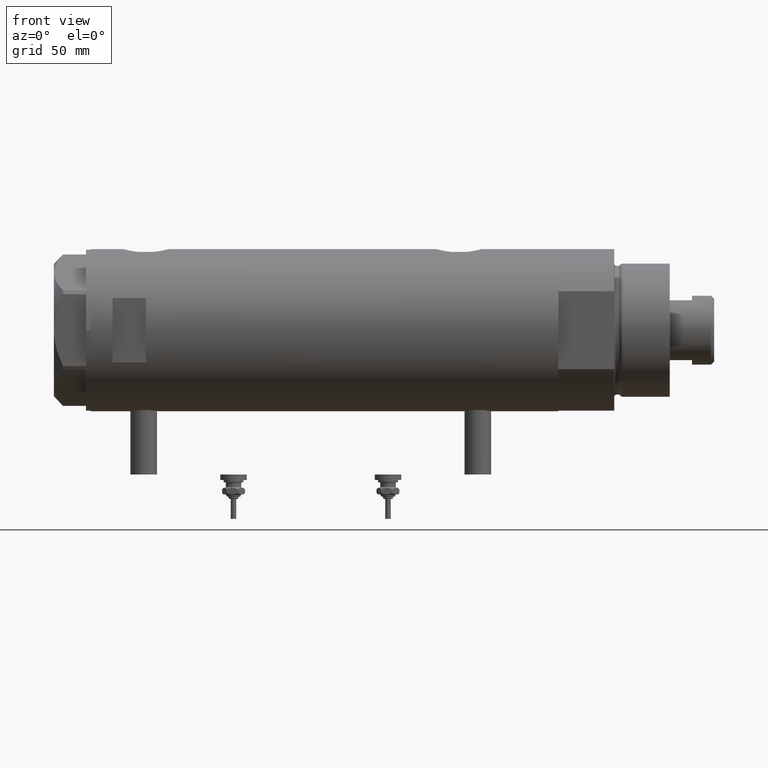
[diagram: clean part render]
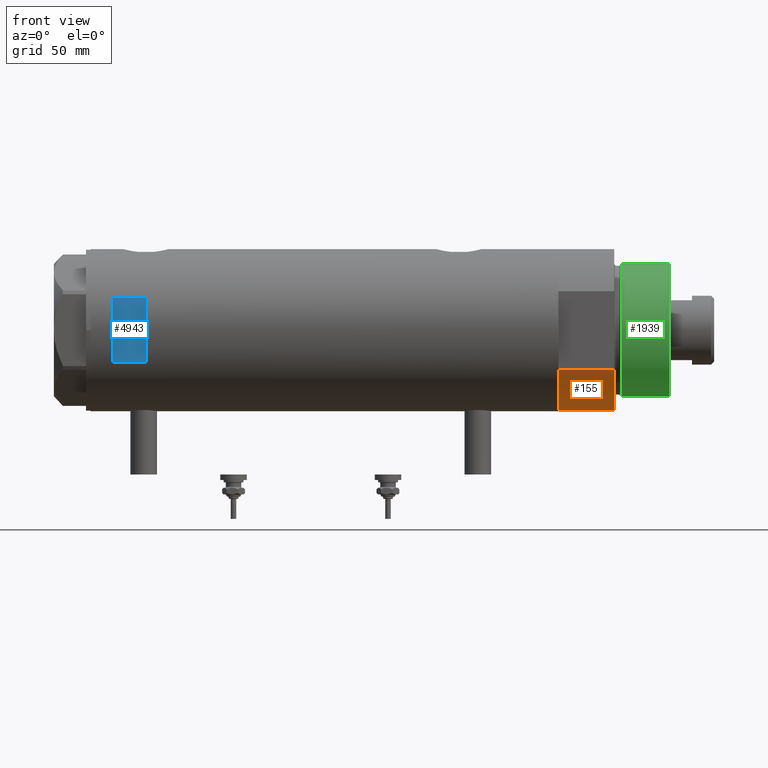
[diagram: same view with three faces highlighted in distinct colors, each labeled with its STEP entity id]
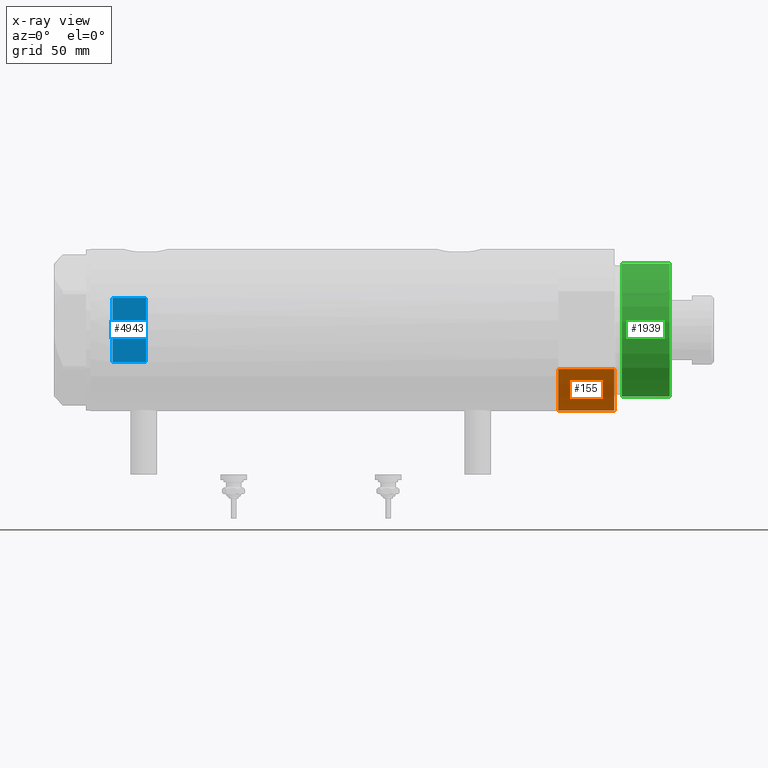
[diagram: x-ray of the same camera — body ghosted, the three highlighted faces saturated]
A machine part, front view with three faces highlighted in distinct colors.
The next image is the same camera in x-ray (body ghosted, the three faces saturated) — at least one of them is partly hidden behind the body in this view.
Their STEP definitions:

[orange] entity #155 — the highlighted cylindrical surface (partial cylindrical patch) has radius 36.5 mm, axis along (-1, -0, 0).
#65 = DIRECTION ( 'NONE',  ( -1.000000000000000000, 0.000000000000000000, 0.000000000000000000 ) ) ;
#155 = ADVANCED_FACE ( 'NONE', ( #4169 ), #5180, .T. ) ;
#209 = CARTESIAN_POINT ( 'NONE',  ( 0.000000000000000000, 0.000000000000000000, 0.000000000000000000 ) ) ;
#309 = CARTESIAN_POINT ( 'NONE',  ( 0.000000000000000000, 0.000000000000000000, 25.19999999999999929 ) ) ;
#436 = AXIS2_PLACEMENT_3D ( 'NONE', #309, #1675, #5355 ) ;
#439 = LINE ( 'NONE', #3683, #1668 ) ;
#454 = ORIENTED_EDGE ( 'NONE', *, *, #1743, .F. ) ;
#495 = CARTESIAN_POINT ( 'NONE',  ( 17.55704986607943496, -32.00000000000000000, 25.19999999999999929 ) ) ;
#593 = AXIS2_PLACEMENT_3D ( 'NONE', #1849, #3695, #65 ) ;
#631 = DIRECTION ( 'NONE',  ( 0.000000000000000000, 0.000000000000000000, 1.000000000000000000 ) ) ;
#649 = EDGE_LOOP ( 'NONE', ( #5561, #454, #1644, #5263 ) ) ;
#914 = CIRCLE ( 'NONE', #436, 36.50000000000000000 ) ;
#1193 = CIRCLE ( 'NONE', #1887, 36.50000000000000000 ) ;
#1265 = DIRECTION ( 'NONE',  ( -0.000000000000000000, -0.000000000000000000, 1.000000000000000000 ) ) ;
#1644 = ORIENTED_EDGE ( 'NONE', *, *, #2425, .T. ) ;
#1668 = VECTOR ( 'NONE', #5060, 1000.000000000000000 ) ;
#1675 = DIRECTION ( 'NONE',  ( 0.000000000000000000, 0.000000000000000000, 1.000000000000000000 ) ) ;
#1743 = EDGE_CURVE ( 'NONE', #2973, #1826, #439, .T. ) ;
#1826 = VERTEX_POINT ( 'NONE', #495 ) ;
#1849 = CARTESIAN_POINT ( 'NONE',  ( 0.000000000000000000, 0.000000000000000000, 25.19999999999999929 ) ) ;
#1887 = AXIS2_PLACEMENT_3D ( 'NONE', #209, #631, #5306 ) ;
#2109 = VERTEX_POINT ( 'NONE', #2700 ) ;
#2425 = EDGE_CURVE ( 'NONE', #2973, #4716, #1193, .T. ) ;
#2660 = VECTOR ( 'NONE', #1265, 1000.000000000000000 ) ;
#2680 = EDGE_CURVE ( 'NONE', #4716, #2109, #5389, .T. ) ;
#2700 = CARTESIAN_POINT ( 'NONE',  ( 17.55704986607943496, 32.00000000000000000, 25.19999999999999929 ) ) ;
#2973 = VERTEX_POINT ( 'NONE', #4966 ) ;
#3683 = CARTESIAN_POINT ( 'NONE',  ( 17.55704986607943141, -32.00000000000000000, 0.000000000000000000 ) ) ;
#3695 = DIRECTION ( 'NONE',  ( -0.000000000000000000, -0.000000000000000000, -1.000000000000000000 ) ) ;
#4043 = CARTESIAN_POINT ( 'NONE',  ( 17.55704986607943141, 32.00000000000000000, 0.000000000000000000 ) ) ;
#4169 = FACE_OUTER_BOUND ( 'NONE', #649, .T. ) ;
#4716 = VERTEX_POINT ( 'NONE', #5265 ) ;
#4801 = EDGE_CURVE ( 'NONE', #1826, #2109, #914, .T. ) ;
#4966 = CARTESIAN_POINT ( 'NONE',  ( 17.55704986607943141, -32.00000000000000000, 0.000000000000000000 ) ) ;
#5060 = DIRECTION ( 'NONE',  ( -0.000000000000000000, -0.000000000000000000, 1.000000000000000000 ) ) ;
#5180 = CYLINDRICAL_SURFACE ( 'NONE', #593, 36.50000000000000000 ) ;
#5263 = ORIENTED_EDGE ( 'NONE', *, *, #2680, .T. ) ;
#5265 = CARTESIAN_POINT ( 'NONE',  ( 17.55704986607943496, 32.00000000000000000, 0.000000000000000000 ) ) ;
#5306 = DIRECTION ( 'NONE',  ( 1.000000000000000000, 0.000000000000000000, 0.000000000000000000 ) ) ;
#5355 = DIRECTION ( 'NONE',  ( 1.000000000000000000, 0.000000000000000000, 0.000000000000000000 ) ) ;
#5389 = LINE ( 'NONE', #4043, #2660 ) ;
#5561 = ORIENTED_EDGE ( 'NONE', *, *, #4801, .F. ) ;

[blue] entity #4943 — the highlighted planar face has unit normal (-0, 1, 0).
#39 = CARTESIAN_POINT ( 'NONE',  ( -36.50000000000000000, -33.50000000000000000, 80.40000000000003411 ) ) ;
#630 = EDGE_CURVE ( 'NONE', #3304, #1897, #3267, .T. ) ;
#1046 = DIRECTION ( 'NONE',  ( 1.000000000000000000, -0.000000000000000000, -0.000000000000000000 ) ) ;
#1187 = FACE_OUTER_BOUND ( 'NONE', #5251, .T. ) ;
#1379 = EDGE_CURVE ( 'NONE', #4206, #2959, #4695, .T. ) ;
#1897 = VERTEX_POINT ( 'NONE', #2442 ) ;
#2081 = CARTESIAN_POINT ( 'NONE',  ( -36.50000000000000000, -33.50000000000000000, 95.40000000000001990 ) ) ;
#2110 = LINE ( 'NONE', #2081, #5156 ) ;
#2371 = DIRECTION ( 'NONE',  ( 1.000000000000000000, -0.000000000000000000, -0.000000000000000000 ) ) ;
#2426 = CARTESIAN_POINT ( 'NONE',  ( 14.49137674618942562, -33.50000000000000000, -105.4000000000000057 ) ) ;
#2442 = CARTESIAN_POINT ( 'NONE',  ( -14.49137674618942739, -33.50000000000000000, 80.40000000000003411 ) ) ;
#2460 = VECTOR ( 'NONE', #2371, 1000.000000000000000 ) ;
#2653 = ORIENTED_EDGE ( 'NONE', *, *, #630, .T. ) ;
#2959 = VERTEX_POINT ( 'NONE', #5027 ) ;
#3052 = PLANE ( 'NONE',  #5714 ) ;
#3267 = LINE ( 'NONE', #5094, #5221 ) ;
#3304 = VERTEX_POINT ( 'NONE', #5466 ) ;
#3305 = CARTESIAN_POINT ( 'NONE',  ( 14.49137674618942739, -33.50000000000000000, 80.40000000000003411 ) ) ;
#3889 = VECTOR ( 'NONE', #4242, 1000.000000000000000 ) ;
#3947 = ORIENTED_EDGE ( 'NONE', *, *, #4289, .F. ) ;
#4175 = LINE ( 'NONE', #39, #2460 ) ;
#4206 = VERTEX_POINT ( 'NONE', #3305 ) ;
#4242 = DIRECTION ( 'NONE',  ( 0.000000000000000000, 0.000000000000000000, 1.000000000000000000 ) ) ;
#4258 = EDGE_CURVE ( 'NONE', #1897, #4206, #4175, .T. ) ;
#4289 = EDGE_CURVE ( 'NONE', #3304, #2959, #2110, .T. ) ;
#4550 = DIRECTION ( 'NONE',  ( 0.000000000000000000, 1.000000000000000000, 0.000000000000000000 ) ) ;
#4585 = ORIENTED_EDGE ( 'NONE', *, *, #4258, .T. ) ;
#4642 = DIRECTION ( 'NONE',  ( -0.000000000000000000, -0.000000000000000000, -1.000000000000000000 ) ) ;
#4695 = LINE ( 'NONE', #2426, #3889 ) ;
#4871 = CARTESIAN_POINT ( 'NONE',  ( -36.50000000000000000, -33.50000000000000000, 95.40000000000001990 ) ) ;
#4943 = ADVANCED_FACE ( 'NONE', ( #1187 ), #3052, .F. ) ;
#5027 = CARTESIAN_POINT ( 'NONE',  ( 14.49137674618942739, -33.50000000000000000, 95.40000000000001990 ) ) ;
#5094 = CARTESIAN_POINT ( 'NONE',  ( -14.49137674618942562, -33.50000000000000000, -105.4000000000000057 ) ) ;
#5121 = DIRECTION ( 'NONE',  ( 0.000000000000000000, -0.000000000000000000, 1.000000000000000000 ) ) ;
#5156 = VECTOR ( 'NONE', #1046, 1000.000000000000000 ) ;
#5221 = VECTOR ( 'NONE', #4642, 1000.000000000000000 ) ;
#5230 = ORIENTED_EDGE ( 'NONE', *, *, #1379, .T. ) ;
#5251 = EDGE_LOOP ( 'NONE', ( #2653, #4585, #5230, #3947 ) ) ;
#5466 = CARTESIAN_POINT ( 'NONE',  ( -14.49137674618942739, -33.50000000000000000, 95.40000000000001990 ) ) ;
#5714 = AXIS2_PLACEMENT_3D ( 'NONE', #4871, #4550, #5121 ) ;

[green] entity #1939 — the highlighted cylindrical surface (partial cylindrical patch) has radius 30 mm, axis along (-1, -0, 0).
#61 = CIRCLE ( 'NONE', #4209, 30.00000000000000000 ) ;
#602 = CARTESIAN_POINT ( 'NONE',  ( -30.00000000000000000, 0.000000000000000000, 28.57384048104054486 ) ) ;
#737 = CYLINDRICAL_SURFACE ( 'NONE', #5236, 30.00000000000000000 ) ;
#761 = CARTESIAN_POINT ( 'NONE',  ( 0.000000000000000000, 0.000000000000000000, 50.19999999999999574 ) ) ;
#921 = DIRECTION ( 'NONE',  ( 1.000000000000000000, 0.000000000000000000, 0.000000000000000000 ) ) ;
#1602 = VERTEX_POINT ( 'NONE', #4676 ) ;
#1626 = ORIENTED_EDGE ( 'NONE', *, *, #4807, .F. ) ;
#1686 = AXIS2_PLACEMENT_3D ( 'NONE', #761, #1741, #2159 ) ;
#1741 = DIRECTION ( 'NONE',  ( 0.000000000000000000, 0.000000000000000000, 1.000000000000000000 ) ) ;
#1802 = CARTESIAN_POINT ( 'NONE',  ( 0.000000000000000000, 0.000000000000000000, 28.57384048104054486 ) ) ;
#1939 = ADVANCED_FACE ( 'NONE', ( #5323 ), #737, .T. ) ;
#2130 = DIRECTION ( 'NONE',  ( -1.000000000000000000, 0.000000000000000000, 0.000000000000000000 ) ) ;
#2159 = DIRECTION ( 'NONE',  ( 1.000000000000000000, 0.000000000000000000, 0.000000000000000000 ) ) ;
#2216 = EDGE_CURVE ( 'NONE', #4525, #5126, #4562, .T. ) ;
#2596 = CARTESIAN_POINT ( 'NONE',  ( 0.000000000000000000, 0.000000000000000000, 50.19999999999999574 ) ) ;
#2730 = DIRECTION ( 'NONE',  ( -0.000000000000000000, -0.000000000000000000, -1.000000000000000000 ) ) ;
#2840 = DIRECTION ( 'NONE',  ( -0.000000000000000000, -0.000000000000000000, 1.000000000000000000 ) ) ;
#2849 = CARTESIAN_POINT ( 'NONE',  ( 30.00000000000000000, 3.673940397442058389E-15, 50.19999999999999574 ) ) ;
#2945 = VECTOR ( 'NONE', #2730, 1000.000000000000000 ) ;
#2966 = ORIENTED_EDGE ( 'NONE', *, *, #2216, .T. ) ;
#3316 = ORIENTED_EDGE ( 'NONE', *, *, #3417, .F. ) ;
#3417 = EDGE_CURVE ( 'NONE', #4556, #1602, #4818, .T. ) ;
#3430 = CIRCLE ( 'NONE', #1686, 30.00000000000000000 ) ;
#3534 = DIRECTION ( 'NONE',  ( -0.000000000000000000, -0.000000000000000000, -1.000000000000000000 ) ) ;
#4201 = CARTESIAN_POINT ( 'NONE',  ( -30.00000000000000000, 0.000000000000000000, 50.19999999999999574 ) ) ;
#4209 = AXIS2_PLACEMENT_3D ( 'NONE', #1802, #2840, #921 ) ;
#4424 = CARTESIAN_POINT ( 'NONE',  ( 30.00000000000000000, 3.673940397442058389E-15, 50.19999999999999574 ) ) ;
#4525 = VERTEX_POINT ( 'NONE', #4201 ) ;
#4556 = VERTEX_POINT ( 'NONE', #2849 ) ;
#4562 = LINE ( 'NONE', #5011, #2945 ) ;
#4676 = CARTESIAN_POINT ( 'NONE',  ( 30.00000000000000000, 3.673940397442058389E-15, 28.57384048104054486 ) ) ;
#4807 = EDGE_CURVE ( 'NONE', #4525, #4556, #3430, .T. ) ;
#4818 = LINE ( 'NONE', #4424, #5427 ) ;
#4906 = DIRECTION ( 'NONE',  ( -0.000000000000000000, -0.000000000000000000, -1.000000000000000000 ) ) ;
#4954 = EDGE_CURVE ( 'NONE', #5126, #1602, #61, .T. ) ;
#5011 = CARTESIAN_POINT ( 'NONE',  ( -30.00000000000000000, 0.000000000000000000, 50.19999999999999574 ) ) ;
#5126 = VERTEX_POINT ( 'NONE', #602 ) ;
#5236 = AXIS2_PLACEMENT_3D ( 'NONE', #2596, #4906, #2130 ) ;
#5323 = FACE_OUTER_BOUND ( 'NONE', #5662, .T. ) ;
#5427 = VECTOR ( 'NONE', #3534, 1000.000000000000000 ) ;
#5588 = ORIENTED_EDGE ( 'NONE', *, *, #4954, .T. ) ;
#5662 = EDGE_LOOP ( 'NONE', ( #3316, #1626, #2966, #5588 ) ) ;